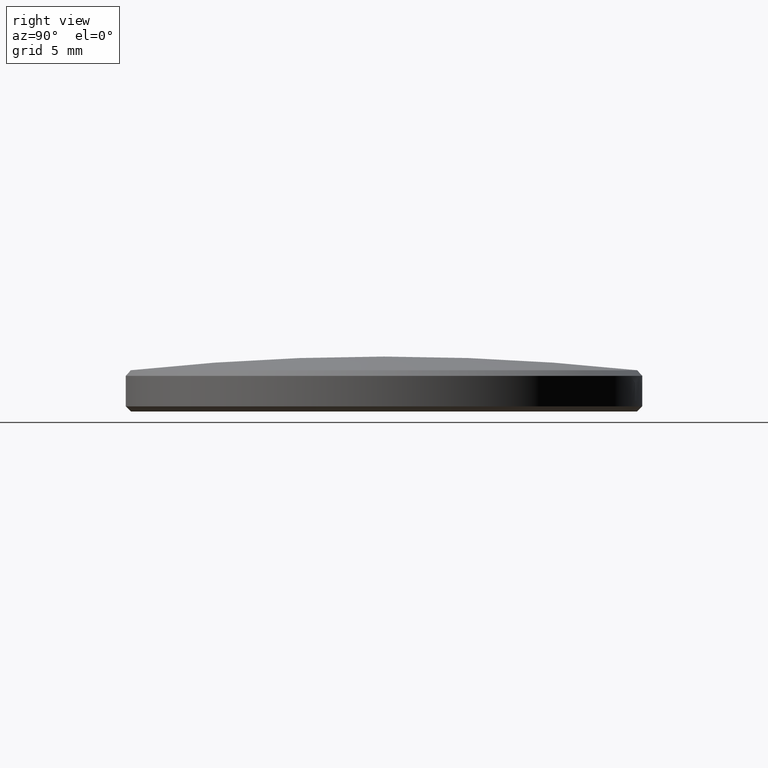
[diagram: clean part render]
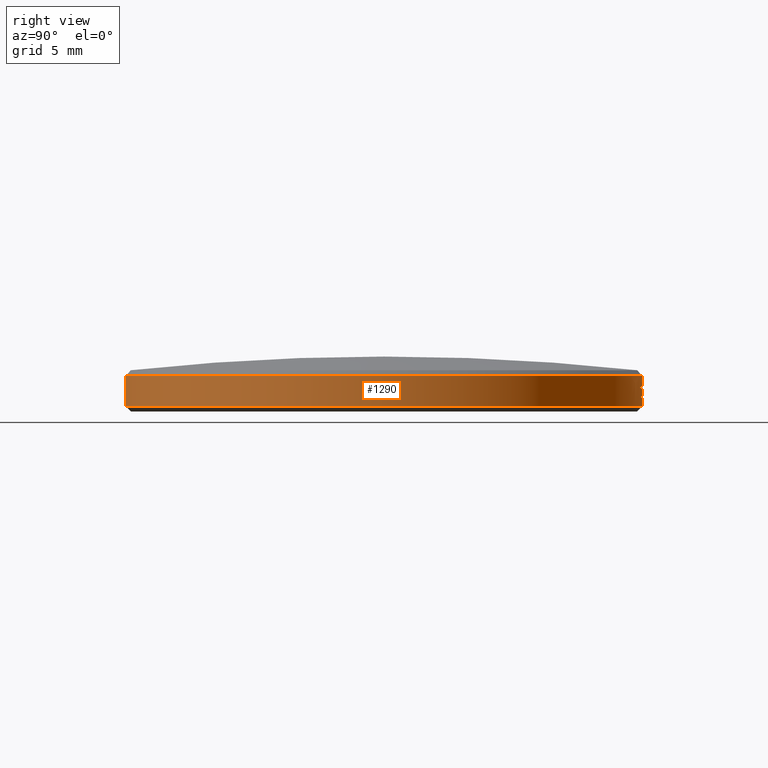
[diagram: same view with one face highlighted and labeled with its STEP entity id]
A machine part, right view. The second image highlights one B-rep face of the part: STEP entity #1290.
In plain terms, the highlighted cylindrical surface (partial cylindrical patch) has radius 12.7 mm, axis along (0, 0, -1).
Its self-contained STEP definition (entity closure, byte-faithful):
#2 = VERTEX_POINT ( 'NONE', #2470 ) ;
#5 = ORIENTED_EDGE ( 'NONE', *, *, #1288, .T. ) ;
#12 = ORIENTED_EDGE ( 'NONE', *, *, #466, .T. ) ;
#22 = CARTESIAN_POINT ( 'NONE',  ( 0.06310918221765582370, 12.69984443364278093, 0.9578117390476045268 ) ) ;
#31 = EDGE_CURVE ( 'NONE', #2350, #2353, #565, .T. ) ;
#41 = CARTESIAN_POINT ( 'NONE',  ( 0.1039479304175971314, 12.69957824866665952, 0.9715471620942197628 ) ) ;
#42 = CARTESIAN_POINT ( 'NONE',  ( 0.9863075602557341837, 12.66164276058135663, 1.053753847064378579 ) ) ;
#44 = AXIS2_PLACEMENT_3D ( 'NONE', #622, #1458, #271 ) ;
#56 = CARTESIAN_POINT ( 'NONE',  ( 0.2578182084802861374, 12.69739299742743199, 0.4172121725201288212 ) ) ;
#62 = DIRECTION ( 'NONE',  ( -0.0000000000000000000, 1.224646799147353454E-16, -1.000000000000000000 ) ) ;
#65 = CARTESIAN_POINT ( 'NONE',  ( 0.1352928001919380951, 12.69927934405004599, 0.3866580847537726684 ) ) ;
#82 = VECTOR ( 'NONE', #160, 1000.000000000000000 ) ;
#98 = CARTESIAN_POINT ( 'NONE',  ( 1.890280369471616817, 12.55901343338894272, 0.7424424913194294096 ) ) ;
#102 = CARTESIAN_POINT ( 'NONE',  ( 2.334205875005757047, 12.48364862262185504, 0.7068640506628636189 ) ) ;
#108 = CARTESIAN_POINT ( 'NONE',  ( 3.077716123806391479, 12.32143106385220577, 0.3999999999999848121 ) ) ;
#111 = VECTOR ( 'NONE', #502, 1000.000000000000000 ) ;
#113 = ORIENTED_EDGE ( 'NONE', *, *, #372, .F. ) ;
#117 = LINE ( 'NONE', #2274, #288 ) ;
#122 = DIRECTION ( 'NONE',  ( 0.0000000000000000000, -1.000000000000000000, -1.195183497228115281E-16 ) ) ;
#124 = DIRECTION ( 'NONE',  ( 0.0000000000000000000, -1.224646799147353700E-16, 1.000000000000000000 ) ) ;
#125 = AXIS2_PLACEMENT_3D ( 'NONE', #1970, #1022, #795 ) ;
#133 = ORIENTED_EDGE ( 'NONE', *, *, #361, .T. ) ;
#134 = VECTOR ( 'NONE', #2159, 1000.000000000000000 ) ;
#138 = CARTESIAN_POINT ( 'NONE',  ( 0.3512937607663082495, 12.69519036954886104, 0.8825326014046565026 ) ) ;
#140 = EDGE_CURVE ( 'NONE', #1902, #872, #1225, .T. ) ;
#152 = CARTESIAN_POINT ( 'NONE',  ( 0.01497619401980290754, 12.70000000000107399, 0.5536123386414030234 ) ) ;
#154 = EDGE_CURVE ( 'NONE', #399, #1506, #254, .T. ) ;
#155 = CARTESIAN_POINT ( 'NONE',  ( 0.8863440183045776521, 12.66905099298163329, 1.243496622866371304 ) ) ;
#160 = DIRECTION ( 'NONE',  ( -0.0000000000000000000, 1.224646799147353454E-16, -1.000000000000000000 ) ) ;
#168 = DIRECTION ( 'NONE',  ( -0.0000000000000000000, 1.224646799147353454E-16, -1.000000000000000000 ) ) ;
#187 = LINE ( 'NONE', #2459, #592 ) ;
#188 = FACE_BOUND ( 'NONE', #1466, .T. ) ;
#189 = CARTESIAN_POINT ( 'NONE',  ( 0.3868556913788471219, 12.69410661189072087, 0.8876053087638934302 ) ) ;
#201 = AXIS2_PLACEMENT_3D ( 'NONE', #590, #168, #964 ) ;
#209 = VERTEX_POINT ( 'NONE', #2223 ) ;
#210 = CARTESIAN_POINT ( 'NONE',  ( 0.3335102337470345346, 12.69564818947010920, 1.238525475396035080 ) ) ;
#214 = CARTESIAN_POINT ( 'NONE',  ( 0.08124733325457739186, 12.69974159198768149, 0.9654208302387725649 ) ) ;
#231 = ORIENTED_EDGE ( 'NONE', *, *, #2445, .T. ) ;
#232 = CARTESIAN_POINT ( 'NONE',  ( 0.4001911994301577402, 12.69369319795852746, 0.6801802201704392203 ) ) ;
#233 = CARTESIAN_POINT ( 'NONE',  ( 0.2275879224296715742, 12.69796212685155012, 0.9400894322221968746 ) ) ;
#234 = CARTESIAN_POINT ( 'NONE',  ( 0.7499267101638491528, 12.67784711593448499, 1.408517300983133769 ) ) ;
#236 = CARTESIAN_POINT ( 'NONE',  ( 0.4001911994301577402, 12.69369319795852746, 0.6801802201704392203 ) ) ;
#238 = B_SPLINE_CURVE_WITH_KNOTS ( 'NONE', 3,
 ( #232, #2164, #1037, #1238 ),
 .UNSPECIFIED., .F., .F.,
 ( 4, 4 ),
 ( 0.0000000000000000000, 1.000000000000000000 ),
 .UNSPECIFIED. ) ;
#244 = CARTESIAN_POINT ( 'NONE',  ( 0.1653007282773312492, 12.69893250538207141, 0.9711166114620122247 ) ) ;
#246 = CARTESIAN_POINT ( 'NONE',  ( 0.3895839738562938415, 12.69402711225090918, 0.6029422081726732996 ) ) ;
#251 = CARTESIAN_POINT ( 'NONE',  ( 0.08492483863449366843, 12.69972148872258089, 0.3910157100277022457 ) ) ;
#252 = CARTESIAN_POINT ( 'NONE',  ( 0.2729893887417808584, 12.69707367360745209, 0.4266902375760575628 ) ) ;
#254 = LINE ( 'NONE', #433, #2277 ) ;
#260 = CARTESIAN_POINT ( 'NONE',  ( 0.2448178652123890742, 12.69764136254018183, 0.9243856886747217061 ) ) ;
#261 = CARTESIAN_POINT ( 'NONE',  ( 0.0000000000000000000, 12.69999999999999751, 0.2499999999999975575 ) ) ;
#266 = CARTESIAN_POINT ( 'NONE',  ( 0.3068341922533429078, 12.69629287542092655, 1.413985558712105961 ) ) ;
#268 = CARTESIAN_POINT ( 'NONE',  ( 0.0000000000000000000, -1.764311156118898572E-16, 1.440669389204528583 ) ) ;
#271 = DIRECTION ( 'NONE',  ( 0.2423398522682198575, 0.9701914223505675450, 1.195183497228115035E-16 ) ) ;
#282 = EDGE_CURVE ( 'NONE', #337, #952, #187, .T. ) ;
#284 = CARTESIAN_POINT ( 'NONE',  ( 0.01844184295076391200, 12.70000000005630447, 0.4126312585269836797 ) ) ;
#288 = VECTOR ( 'NONE', #1132, 1000.000000000000000 ) ;
#295 = VERTEX_POINT ( 'NONE', #1093 ) ;
#303 = ORIENTED_EDGE ( 'NONE', *, *, #154, .T. ) ;
#308 = VERTEX_POINT ( 'NONE', #2072 ) ;
#310 = CARTESIAN_POINT ( 'NONE',  ( 1.278653719037693870, 12.63546772647498884, 0.6534963896780150439 ) ) ;
#321 = CARTESIAN_POINT ( 'NONE',  ( 1.555301434917138235E-15, -12.69999999999999751, -1.555301434917138433E-15 ) ) ;
#323 = DIRECTION ( 'NONE',  ( -0.0000000000000000000, 1.224646799147353454E-16, -1.000000000000000000 ) ) ;
#324 = CIRCLE ( 'NONE', #2137, 12.69999999999999751 ) ;
#325 = ORIENTED_EDGE ( 'NONE', *, *, #699, .F. ) ;
#337 = VERTEX_POINT ( 'NONE', #1102 ) ;
#345 = CARTESIAN_POINT ( 'NONE',  ( 1.278653719037693870, 12.63546772647498884, 0.3999999999999848677 ) ) ;
#347 = CARTESIAN_POINT ( 'NONE',  ( 2.424058770640387994, 12.46699250685706239, 0.7424424913194291875 ) ) ;
#350 = CARTESIAN_POINT ( 'NONE',  ( 0.3868556913788471219, 12.69410661189072087, 0.8876053087638934302 ) ) ;
#355 = DIRECTION ( 'NONE',  ( 0.1006813951998184326, 0.9949187186200780797, 1.195183497228115281E-16 ) ) ;
#361 = EDGE_CURVE ( 'NONE', #500, #1864, #1993, .T. ) ;
#364 = DIRECTION ( 'NONE',  ( 0.0000000000000000000, 0.0000000000000000000, -1.000000000000000000 ) ) ;
#367 = CARTESIAN_POINT ( 'NONE',  ( 0.0000000000000000000, -8.003022618735309142E-17, 0.6534963896780134895 ) ) ;
#368 = ORIENTED_EDGE ( 'NONE', *, *, #1986, .T. ) ;
#372 = EDGE_CURVE ( 'NONE', #2360, #686, #117, .T. ) ;
#382 = CARTESIAN_POINT ( 'NONE',  ( 2.974054955189381566, 12.34686183301301199, 1.427327473958318160 ) ) ;
#386 = VECTOR ( 'NONE', #1197, 1000.000000000000000 ) ;
#390 = CARTESIAN_POINT ( 'NONE',  ( 0.0000000000000000000, 12.69999999999999751, 1.555301434917138433E-15 ) ) ;
#397 = ORIENTED_EDGE ( 'NONE', *, *, #1608, .F. ) ;
#399 = VERTEX_POINT ( 'NONE', #2300 ) ;
#401 = CARTESIAN_POINT ( 'NONE',  ( 1.278653719037693870, 12.63546772647498884, 1.440669389204530138 ) ) ;
#402 = ORIENTED_EDGE ( 'NONE', *, *, #1657, .T. ) ;
#411 = EDGE_CURVE ( 'NONE', #2537, #1558, #1047, .T. ) ;
#420 = CARTESIAN_POINT ( 'NONE',  ( 0.1336251542595709996, 12.69929700094257363, 0.9737023555871059388 ) ) ;
#433 = CARTESIAN_POINT ( 'NONE',  ( 2.557383061100909849, 12.43984693952437937, 0.5200772372158939394 ) ) ;
#434 = CARTESIAN_POINT ( 'NONE',  ( 1.998444601850833724, 12.54225647435846902, 1.084884982638873785 ) ) ;
#438 = CARTESIAN_POINT ( 'NONE',  ( 2.974054955189382010, 12.34686183301301199, 0.5200772372158939394 ) ) ;
#441 = CARTESIAN_POINT ( 'NONE',  ( 0.0000000000000000000, -8.656587970766066855E-17, 0.7068640506628620646 ) ) ;
#442 = EDGE_CURVE ( 'NONE', #552, #209, #581, .T. ) ;
#444 = CARTESIAN_POINT ( 'NONE',  ( 2.422260908450363015, 12.46686215899546823, 0.3999999999999848121 ) ) ;
#458 = DIRECTION ( 'NONE',  ( -0.0000000000000000000, 1.224646799147353454E-16, -1.000000000000000000 ) ) ;
#463 = DIRECTION ( 'NONE',  ( -0.0000000000000000000, 1.224646799147353454E-16, -1.000000000000000000 ) ) ;
#464 = B_SPLINE_CURVE_WITH_KNOTS ( 'NONE', 3,
 ( #663, #491, #2406, #1294 ),
 .UNSPECIFIED., .F., .F.,
 ( 4, 4 ),
 ( 0.0000000000000000000, 1.000000000000000000 ),
 .UNSPECIFIED. ) ;
#466 = EDGE_CURVE ( 'NONE', #1864, #767, #1682, .T. ) ;
#469 = CARTESIAN_POINT ( 'NONE',  ( 0.1363350777167393613, 12.69926819728538270, 0.4933934067234697629 ) ) ;
#473 = CARTESIAN_POINT ( 'NONE',  ( 0.9481902397977944874, 12.66461199625284451, 1.071924261160329017 ) ) ;
#474 = CARTESIAN_POINT ( 'NONE',  ( 0.1352928001919380951, 12.69927934405004599, 0.3866580847537726684 ) ) ;
#483 = ORIENTED_EDGE ( 'NONE', *, *, #2120, .T. ) ;
#488 = LINE ( 'NONE', #382, #2012 ) ;
#491 = CARTESIAN_POINT ( 'NONE',  ( 1.621340980502723017, 12.59667257590404787, 0.9959388809974596413 ) ) ;
#493 = CARTESIAN_POINT ( 'NONE',  ( 0.2715026701357829420, 12.69709814792432567, 0.5997801622162662882 ) ) ;
#496 = CARTESIAN_POINT ( 'NONE',  ( 0.9101465851127908957, 12.66740232306849201, 1.095200073367656568 ) ) ;
#500 = VERTEX_POINT ( 'NONE', #776 ) ;
#502 = DIRECTION ( 'NONE',  ( 0.0000000000000000000, 0.0000000000000000000, 1.000000000000000000 ) ) ;
#504 = CARTESIAN_POINT ( 'NONE',  ( 0.6667890395956690419, 12.68248368328045750, 1.440669389204530138 ) ) ;
#520 = VERTEX_POINT ( 'NONE', #1748 ) ;
#522 = ORIENTED_EDGE ( 'NONE', *, *, #31, .T. ) ;
#523 = CARTESIAN_POINT ( 'NONE',  ( 0.2575012799039565481, 12.69739090813273563, 0.5704019713878063502 ) ) ;
#531 = CARTESIAN_POINT ( 'NONE',  ( 0.1817539795625134347, 12.69871536028208681, 0.4994228850956718979 ) ) ;
#539 = VECTOR ( 'NONE', #548, 1000.000000000000000 ) ;
#540 = EDGE_CURVE ( 'NONE', #1114, #745, #1389, .T. ) ;
#545 = ORIENTED_EDGE ( 'NONE', *, *, #1483, .F. ) ;
#548 = DIRECTION ( 'NONE',  ( 0.0000000000000000000, 0.0000000000000000000, -1.000000000000000000 ) ) ;
#552 = VERTEX_POINT ( 'NONE', #1602 ) ;
#556 = CARTESIAN_POINT ( 'NONE',  ( 0.1363350777167393613, 12.69926819728538270, 0.4933934067234697629 ) ) ;
#560 = CARTESIAN_POINT ( 'NONE',  ( 0.8187019320673004641, 12.67360226588865935, 1.310161436843087834 ) ) ;
#565 = CIRCLE ( 'NONE', #2242, 12.69999999999999751 ) ;
#576 = EDGE_CURVE ( 'NONE', #1334, #308, #1761, .T. ) ;
#578 = ORIENTED_EDGE ( 'NONE', *, *, #2476, .T. ) ;
#581 = CIRCLE ( 'NONE', #1153, 12.70000000000000107 ) ;
#590 = CARTESIAN_POINT ( 'NONE',  ( 0.0000000000000000000, -4.898587196589208464E-17, 0.3999999999999832578 ) ) ;
#592 = VECTOR ( 'NONE', #1494, 1000.000000000000000 ) ;
#597 = LINE ( 'NONE', #737, #539 ) ;
#600 = VERTEX_POINT ( 'NONE', #438 ) ;
#603 = CARTESIAN_POINT ( 'NONE',  ( 0.3068341922533429078, 12.69629287542092655, 1.413985558712105961 ) ) ;
#616 = CARTESIAN_POINT ( 'NONE',  ( 0.3601842434194429399, 12.69491943013432511, 1.063065392079964200 ) ) ;
#622 = CARTESIAN_POINT ( 'NONE',  ( 0.0000000000000000000, -1.747972022318129906E-16, 1.427327473958316606 ) ) ;
#637 = DIRECTION ( 'NONE',  ( 0.1993102527322242190, 0.9799364383243521770, 1.195183497228115035E-16 ) ) ;
#645 = EDGE_CURVE ( 'NONE', #295, #710, #1629, .T. ) ;
#648 = CARTESIAN_POINT ( 'NONE',  ( 3.077716123806392368, 12.32143106385220932, 1.427327473958318160 ) ) ;
#654 = ORIENTED_EDGE ( 'NONE', *, *, #282, .T. ) ;
#663 = CARTESIAN_POINT ( 'NONE',  ( 1.742279033814754907, 12.57992304302094944, 0.7735736268939242821 ) ) ;
#664 = DIRECTION ( 'NONE',  ( 0.1837957381894297360, 0.9829644584741620283, 1.195183497228115035E-16 ) ) ;
#667 = CARTESIAN_POINT ( 'NONE',  ( 1.980454960430679368, 12.54463224449826342, 0.7068640506628636189 ) ) ;
#669 = ORIENTED_EDGE ( 'NONE', *, *, #908, .T. ) ;
#670 = CIRCLE ( 'NONE', #803, 12.69999999999999929 ) ;
#671 = CARTESIAN_POINT ( 'NONE',  ( 0.2256271626161111266, 12.69800580970228410, 0.4017925265974941484 ) ) ;
#675 = CIRCLE ( 'NONE', #878, 12.70000000000000107 ) ;
#677 = CARTESIAN_POINT ( 'NONE',  ( 1.950871536830508957, 12.54930265945133172, 0.6045760337752373870 ) ) ;
#686 = VERTEX_POINT ( 'NONE', #261 ) ;
#692 = CARTESIAN_POINT ( 'NONE',  ( 0.7733523448472124917, 12.67643191717287898, 1.213856830018924082 ) ) ;
#699 = EDGE_CURVE ( 'NONE', #2350, #731, #1263, .T. ) ;
#700 = B_SPLINE_CURVE_WITH_KNOTS ( 'NONE', 3,
 ( #1519, #347, #951, #1337 ),
 .UNSPECIFIED., .F., .F.,
 ( 4, 4 ),
 ( 0.0000000000000000000, 1.000000000000000000 ),
 .UNSPECIFIED. ) ;
#702 = ORIENTED_EDGE ( 'NONE', *, *, #1697, .T. ) ;
#704 = LINE ( 'NONE', #2491, #1916 ) ;
#710 = VERTEX_POINT ( 'NONE', #648 ) ;
#711 = EDGE_CURVE ( 'NONE', #209, #2153, #2410, .T. ) ;
#713 = VERTEX_POINT ( 'NONE', #469 ) ;
#718 = EDGE_CURVE ( 'NONE', #2360, #1902, #1845, .T. ) ;
#722 = CARTESIAN_POINT ( 'NONE',  ( -9.089488522758247023E-10, 12.69999999999999751, 0.5776953777975255555 ) ) ;
#723 = CARTESIAN_POINT ( 'NONE',  ( 0.2801574931158425374, 12.69690953653884158, 0.8723871866861826474 ) ) ;
#725 = FACE_BOUND ( 'NONE', #2095, .T. ) ;
#729 = LINE ( 'NONE', #2167, #386 ) ;
#731 = VERTEX_POINT ( 'NONE', #855 ) ;
#737 = CARTESIAN_POINT ( 'NONE',  ( 1.159131255715042164, 12.64699231960011971, 0.7735736268939241711 ) ) ;
#740 = VERTEX_POINT ( 'NONE', #2011 ) ;
#742 = EDGE_CURVE ( 'NONE', #902, #1988, #1298, .T. ) ;
#745 = VERTEX_POINT ( 'NONE', #2240 ) ;
#752 = CARTESIAN_POINT ( 'NONE',  ( 0.03341181653052784084, 12.69997861916460380, 0.5334488288500165432 ) ) ;
#759 = DIRECTION ( 'NONE',  ( -0.0000000000000000000, 1.224646799147353454E-16, -1.000000000000000000 ) ) ;
#767 = VERTEX_POINT ( 'NONE', #2249 ) ;
#776 = CARTESIAN_POINT ( 'NONE',  ( 0.6667890395956659333, 12.68248368328045572, 0.3999999999999848677 ) ) ;
#786 = CIRCLE ( 'NONE', #823, 12.69999999999999751 ) ;
#795 = DIRECTION ( 'NONE',  ( 0.0000000000000000000, 1.000000000000000000, 1.224646799147353454E-16 ) ) ;
#803 = AXIS2_PLACEMENT_3D ( 'NONE', #1344, #1714, #2116 ) ;
#807 = CARTESIAN_POINT ( 'NONE',  ( 0.03508822404407846429, 12.69997131249745337, 0.9420361929169377424 ) ) ;
#814 = CARTESIAN_POINT ( 'NONE',  ( 0.01610789549318525013, 12.69999999999864926, 0.9242560151147591885 ) ) ;
#823 = AXIS2_PLACEMENT_3D ( 'NONE', #1152, #323, #1702 ) ;
#833 = CARTESIAN_POINT ( 'NONE',  ( 0.1943568596023401152, 12.69852103664611498, 0.9612004236546428659 ) ) ;
#837 = CARTESIAN_POINT ( 'NONE',  ( 0.1620438354821832072, 12.69897158723517805, 0.3879260273607537668 ) ) ;
#840 = B_SPLINE_CURVE_WITH_KNOTS ( 'NONE', 3,
 ( #692, #870, #1487, #496, #473, #2224 ),
 .UNSPECIFIED., .F., .F.,
 ( 4, 2, 4 ),
 ( 0.0000000000000000000, 0.5000000000000000000, 1.000000000000000000 ),
 .UNSPECIFIED. ) ;
#843 = EDGE_CURVE ( 'NONE', #902, #552, #863, .T. ) ;
#850 = DIRECTION ( 'NONE',  ( -0.0000000000000000000, 1.224646799147353454E-16, -1.000000000000000000 ) ) ;
#855 = CARTESIAN_POINT ( 'NONE',  ( 0.0000000000000000000, 12.69999999999999751, 1.413985558712105961 ) ) ;
#863 = B_SPLINE_CURVE_WITH_KNOTS ( 'NONE', 3,
 ( #1402, #434, #98, #1647 ),
 .UNSPECIFIED., .F., .F.,
 ( 4, 4 ),
 ( 0.0000000000000000000, 1.000000000000000000 ),
 .UNSPECIFIED. ) ;
#867 = CARTESIAN_POINT ( 'NONE',  ( 0.04147587739347232544, 12.69995365637636375, 0.4020082157579292215 ) ) ;
#870 = CARTESIAN_POINT ( 'NONE',  ( 0.8039699363360456319, 12.67456402671867366, 1.178579889975393868 ) ) ;
#872 = VERTEX_POINT ( 'NONE', #1793 ) ;
#878 = AXIS2_PLACEMENT_3D ( 'NONE', #441, #850, #664 ) ;
#879 = EDGE_CURVE ( 'NONE', #767, #1163, #840, .T. ) ;
#882 = CARTESIAN_POINT ( 'NONE',  ( 0.1352928001919380951, 12.69927934405004599, 0.3866580847537726684 ) ) ;
#887 = VERTEX_POINT ( 'NONE', #266 ) ;
#892 = AXIS2_PLACEMENT_3D ( 'NONE', #1541, #1904, #1510 ) ;
#894 = DIRECTION ( 'NONE',  ( 0.1090393922241073149, 0.9940374293473043243, 1.237868622129119302E-16 ) ) ;
#898 = ORIENTED_EDGE ( 'NONE', *, *, #742, .F. ) ;
#899 = CARTESIAN_POINT ( 'NONE',  ( 2.363577178406018664, 12.47815674512466089, 0.6045760337752373870 ) ) ;
#902 = VERTEX_POINT ( 'NONE', #2033 ) ;
#908 = EDGE_CURVE ( 'NONE', #2, #520, #464, .T. ) ;
#910 = B_SPLINE_CURVE_WITH_KNOTS ( 'NONE', 3,
 ( #102, #899, #2067, #1099 ),
 .UNSPECIFIED., .F., .F.,
 ( 4, 4 ),
 ( 0.0000000000000000000, 1.000000000000000000 ),
 .UNSPECIFIED. ) ;
#914 = VERTEX_POINT ( 'NONE', #1081 ) ;
#915 = CARTESIAN_POINT ( 'NONE',  ( 0.2934960046421008495, 12.69660821224546687, 0.6935221354166514196 ) ) ;
#922 = ORIENTED_EDGE ( 'NONE', *, *, #2329, .T. ) ;
#924 = CARTESIAN_POINT ( 'NONE',  ( 0.0000000000000000000, 12.69999999999999751, 1.749999999999975353 ) ) ;
#928 = CARTESIAN_POINT ( 'NONE',  ( 0.3157272759872993273, 12.69612468876377775, 0.8774598940454195750 ) ) ;
#933 = VERTEX_POINT ( 'NONE', #1256 ) ;
#951 = CARTESIAN_POINT ( 'NONE',  ( 2.316595698633677980, 12.48740755555854598, 1.084884982638873341 ) ) ;
#952 = VERTEX_POINT ( 'NONE', #958 ) ;
#953 = CARTESIAN_POINT ( 'NONE',  ( 0.08129772384729379298, 12.69976235828132616, 0.5012233042504621316 ) ) ;
#958 = CARTESIAN_POINT ( 'NONE',  ( 1.384800281246159948, 12.62427535271076628, 0.6534963896780150439 ) ) ;
#964 = DIRECTION ( 'NONE',  ( 0.2423398522682198575, 0.9701914223505675450, 1.195183497228115035E-16 ) ) ;
#970 = EDGE_CURVE ( 'NONE', #2099, #914, #1447, .T. ) ;
#971 = VERTEX_POINT ( 'NONE', #345 ) ;
#980 = VECTOR ( 'NONE', #1257, 1000.000000000000000 ) ;
#996 = ORIENTED_EDGE ( 'NONE', *, *, #576, .T. ) ;
#1006 = CARTESIAN_POINT ( 'NONE',  ( 0.7358945226224516967, 12.67866157177382291, 1.440669389204530138 ) ) ;
#1022 = DIRECTION ( 'NONE',  ( -0.0000000000000000000, 1.224646799147353454E-16, -1.000000000000000000 ) ) ;
#1037 = CARTESIAN_POINT ( 'NONE',  ( 0.3290649433680071789, 12.69578599727034174, 0.6890748303345807235 ) ) ;
#1039 = CARTESIAN_POINT ( 'NONE',  ( 0.2630363814684353319, 12.69727812175302617, 0.9025877292579305156 ) ) ;
#1047 = B_SPLINE_CURVE_WITH_KNOTS ( 'NONE', 3,
 ( #723, #928, #138, #350 ),
 .UNSPECIFIED., .F., .F.,
 ( 4, 4 ),
 ( 0.0000000000000000000, 1.000000000000000000 ),
 .UNSPECIFIED. ) ;
#1052 = EDGE_CURVE ( 'NONE', #399, #600, #1383, .T. ) ;
#1054 = DIRECTION ( 'NONE',  ( -0.0000000000000000000, 1.224646799147353454E-16, -1.000000000000000000 ) ) ;
#1056 = CARTESIAN_POINT ( 'NONE',  ( 0.1466853431629177862, 12.69915797267155710, 0.3869947937050474129 ) ) ;
#1065 = DIRECTION ( 'NONE',  ( 0.1085661902581407379, 0.9940892225212146771, 1.195183497228115528E-16 ) ) ;
#1071 = CARTESIAN_POINT ( 'NONE',  ( 0.3732237400949082740, 12.69451525905633460, 0.5546887353606061444 ) ) ;
#1073 = ORIENTED_EDGE ( 'NONE', *, *, #2338, .T. ) ;
#1077 = CARTESIAN_POINT ( 'NONE',  ( 0.2089913795478758329, 12.69828635497104941, 0.9534328739551836129 ) ) ;
#1081 = CARTESIAN_POINT ( 'NONE',  ( 1.278653719037693870, 12.63546772647498884, 0.6534963896780150439 ) ) ;
#1084 = CARTESIAN_POINT ( 'NONE',  ( 0.2897600287006599218, 12.69669457342114072, 0.6654952345451168316 ) ) ;
#1093 = CARTESIAN_POINT ( 'NONE',  ( 2.974054955189381566, 12.34686183301301199, 1.427327473958318160 ) ) ;
#1099 = CARTESIAN_POINT ( 'NONE',  ( 2.422260908450363015, 12.46686215899546823, 0.3999999999999848121 ) ) ;
#1102 = CARTESIAN_POINT ( 'NONE',  ( 1.384800281246162834, 12.62427535271076451, 0.3999999999999848677 ) ) ;
#1113 = B_SPLINE_CURVE_WITH_KNOTS ( 'NONE', 3,
 ( #915, #1084, #1673, #493, #2086, #523, #1515, #2289, #531, #1897, #556 ),
 .UNSPECIFIED., .F., .F.,
 ( 4, 1, 2, 2, 2, 4 ),
 ( 0.0000000000000000000, 0.2499999999999992228, 0.3749999999999995004, 0.4999999999999997780, 0.7499999999999998890, 1.000000000000000000 ),
 .UNSPECIFIED. ) ;
#1114 = VERTEX_POINT ( 'NONE', #2362 ) ;
#1116 = EDGE_CURVE ( 'NONE', #731, #887, #324, .T. ) ;
#1125 = CARTESIAN_POINT ( 'NONE',  ( 0.0000000000000000000, -3.061616997868334947E-17, 0.2499999999999960032 ) ) ;
#1130 = VECTOR ( 'NONE', #1137, 1000.000000000000000 ) ;
#1131 = CIRCLE ( 'NONE', #201, 12.70000000000000107 ) ;
#1132 = DIRECTION ( 'NONE',  ( -0.0000000000000000000, 1.224646799147353454E-16, -1.000000000000000000 ) ) ;
#1137 = DIRECTION ( 'NONE',  ( -0.0000000000000000000, 1.224646799147353454E-16, -1.000000000000000000 ) ) ;
#1152 = CARTESIAN_POINT ( 'NONE',  ( 0.0000000000000000000, -8.003022618735309142E-17, 0.6534963896780134895 ) ) ;
#1153 = AXIS2_PLACEMENT_3D ( 'NONE', #1762, #2112, #1165 ) ;
#1163 = VERTEX_POINT ( 'NONE', #42 ) ;
#1165 = DIRECTION ( 'NONE',  ( 0.1489492808733328677, 0.9888448370332511006, 1.195183497228115035E-16 ) ) ;
#1170 = CARTESIAN_POINT ( 'NONE',  ( 0.2801574931158425374, 12.69690953653884158, 0.8723871866861826474 ) ) ;
#1184 = CARTESIAN_POINT ( 'NONE',  ( 0.9863075602557344057, 12.66164276058135663, 1.173831084280287707 ) ) ;
#1197 = DIRECTION ( 'NONE',  ( 0.0000000000000000000, 0.0000000000000000000, 1.000000000000000000 ) ) ;
#1218 = CARTESIAN_POINT ( 'NONE',  ( 1.159131255715038611, 12.64699231960012149, 0.6534963896780150439 ) ) ;
#1219 = CARTESIAN_POINT ( 'NONE',  ( 0.7630665808679564233, 12.67706749100951136, 1.384584353647243971 ) ) ;
#1225 = B_SPLINE_CURVE_WITH_KNOTS ( 'NONE', 3,
 ( #65, #1056, #837, #2026, #1264, #2211, #1630, #671, #56, #252, #1235, #1432, #2200, #2032, #2426, #1071, #1461, #246, #2191, #236 ),
 .UNSPECIFIED., .F., .F.,
 ( 4, 1, 2, 2, 2, 2, 2, 1, 2, 2, 4 ),
 ( 0.0000000000000000000, 0.06250000000000015266, 0.09375000000000026368, 0.1250000000000003608, 0.2500000000000006106, 0.3750000000000006661, 0.5000000000000007772, 0.6250000000000008882, 0.6875000000000007772, 0.7500000000000006661, 1.000000000000000000 ),
 .UNSPECIFIED. ) ;
#1235 = CARTESIAN_POINT ( 'NONE',  ( 0.3014832828076833282, 12.69642906133722704, 0.4491828518771382450 ) ) ;
#1238 = CARTESIAN_POINT ( 'NONE',  ( 0.2934960046421008495, 12.69660821224546687, 0.6935221354166514196 ) ) ;
#1252 = DIRECTION ( 'NONE',  ( 0.1739280990653989667, 0.9847583542958631142, 1.195183497228115035E-16 ) ) ;
#1256 = CARTESIAN_POINT ( 'NONE',  ( 0.2934960046421008495, 12.69660821224546687, 0.6935221354166514196 ) ) ;
#1257 = DIRECTION ( 'NONE',  ( 0.0000000000000000000, 0.0000000000000000000, -1.000000000000000000 ) ) ;
#1259 = CARTESIAN_POINT ( 'NONE',  ( 1.980454960430679368, 12.54463224449826342, 0.7068640506628636189 ) ) ;
#1263 = LINE ( 'NONE', #1849, #2339 ) ;
#1264 = CARTESIAN_POINT ( 'NONE',  ( 0.1827390588351049672, 12.69868584416825641, 0.3906855657685140981 ) ) ;
#1272 = CARTESIAN_POINT ( 'NONE',  ( 0.1213010066313962299, 12.69942840675503959, 0.3870639924514955310 ) ) ;
#1281 = CARTESIAN_POINT ( 'NONE',  ( 1.891655867091326826, 12.55832943032228677, 0.3999999999999848121 ) ) ;
#1288 = EDGE_CURVE ( 'NONE', #872, #933, #238, .T. ) ;
#1290 = ADVANCED_FACE ( 'NONE', ( #725, #1829, #188, #1737, #2068 ), #1707, .T. ) ;
#1294 = CARTESIAN_POINT ( 'NONE',  ( 1.378790616278386949, 12.62493312601942286, 1.440669389204530138 ) ) ;
#1298 = CIRCLE ( 'NONE', #2408, 12.70000000000000107 ) ;
#1300 = AXIS2_PLACEMENT_3D ( 'NONE', #2161, #1755, #2327 ) ;
#1302 = ORIENTED_EDGE ( 'NONE', *, *, #1769, .T. ) ;
#1311 = ORIENTED_EDGE ( 'NONE', *, *, #2035, .T. ) ;
#1313 = ORIENTED_EDGE ( 'NONE', *, *, #2207, .T. ) ;
#1329 = DIRECTION ( 'NONE',  ( -0.0000000000000000000, 1.224646799147352961E-16, -1.000000000000000000 ) ) ;
#1334 = VERTEX_POINT ( 'NONE', #444 ) ;
#1336 = VERTEX_POINT ( 'NONE', #2019 ) ;
#1337 = CARTESIAN_POINT ( 'NONE',  ( 2.208886858130567177, 12.50643109955746191, 1.427327473958318160 ) ) ;
#1339 = CARTESIAN_POINT ( 'NONE',  ( 0.1047247224561835555, 12.69960755544162723, 0.4944397479296146480 ) ) ;
#1343 = ORIENTED_EDGE ( 'NONE', *, *, #843, .T. ) ;
#1344 = CARTESIAN_POINT ( 'NONE',  ( 0.0000000000000000000, -1.764311156118898572E-16, 1.440669389204528583 ) ) ;
#1346 = AXIS2_PLACEMENT_3D ( 'NONE', #1677, #2259, #894 ) ;
#1351 = DIRECTION ( 'NONE',  ( 0.0000000000000000000, 1.000000000000000000, 1.237868622129119548E-16 ) ) ;
#1355 = ORIENTED_EDGE ( 'NONE', *, *, #1513, .F. ) ;
#1363 = ORIENTED_EDGE ( 'NONE', *, *, #1554, .T. ) ;
#1367 = CARTESIAN_POINT ( 'NONE',  ( 0.6667890395956660443, 12.68248368328045927, 1.440669389204530138 ) ) ;
#1374 = AXIS2_PLACEMENT_3D ( 'NONE', #1780, #1992, #637 ) ;
#1381 = ORIENTED_EDGE ( 'NONE', *, *, #1052, .F. ) ;
#1383 = CIRCLE ( 'NONE', #1300, 12.69999999999999929 ) ;
#1386 = CARTESIAN_POINT ( 'NONE',  ( 0.9552749593338392131, 12.66406011585526592, 1.192578265090589840 ) ) ;
#1388 = VERTEX_POINT ( 'NONE', #2412 ) ;
#1389 = B_SPLINE_CURVE_WITH_KNOTS ( 'NONE', 3,
 ( #1184, #1386, #2144, #155, #1546, #560, #2156, #1219, #234, #1006 ),
 .UNSPECIFIED., .F., .F.,
 ( 4, 2, 2, 2, 4 ),
 ( 0.0000000000000000000, 0.2500000000000000000, 0.5000000000000000000, 0.7500000000000000000, 1.000000000000000000 ),
 .UNSPECIFIED. ) ;
#1401 = CARTESIAN_POINT ( 'NONE',  ( 0.08949325887145061220, 12.69968559347742065, 0.9679248953202619354 ) ) ;
#1402 = CARTESIAN_POINT ( 'NONE',  ( 2.106374175317978548, 12.52410427270363513, 1.427327473958318382 ) ) ;
#1427 = CARTESIAN_POINT ( 'NONE',  ( 0.1170526048810734410, 12.69947138141946752, 0.9730705080971727705 ) ) ;
#1432 = CARTESIAN_POINT ( 'NONE',  ( 0.3157698463110790166, 12.69607893190671888, 0.4633465902507100664 ) ) ;
#1437 = CARTESIAN_POINT ( 'NONE',  ( 0.0000000000000000000, -1.747972022318129906E-16, 1.427327473958316606 ) ) ;
#1439 = DIRECTION ( 'NONE',  ( 0.0000000000000000000, 0.0000000000000000000, -1.000000000000000000 ) ) ;
#1447 = CIRCLE ( 'NONE', #2017, 12.69999999999999751 ) ;
#1448 = CARTESIAN_POINT ( 'NONE',  ( 0.2713214507424343003, 12.69710450394199519, 0.8893215787158424979 ) ) ;
#1450 = CIRCLE ( 'NONE', #2303, 12.69999999999999751 ) ;
#1457 = CARTESIAN_POINT ( 'NONE',  ( 0.1336251542595709996, 12.69929700094257363, 0.9737023555871059388 ) ) ;
#1458 = DIRECTION ( 'NONE',  ( -0.0000000000000000000, 1.224646799147353454E-16, -1.000000000000000000 ) ) ;
#1461 = CARTESIAN_POINT ( 'NONE',  ( 0.3770896055554183168, 12.69440072155180133, 0.5650881266500843436 ) ) ;
#1466 = EDGE_LOOP ( 'NONE', ( #368, #402, #654, #1811, #1311, #669, #1873, #231, #545, #1363, #2039 ) ) ;
#1473 = CARTESIAN_POINT ( 'NONE',  ( 1.067613639957903620E-09, 12.69999999999999751, 0.9009984037993408190 ) ) ;
#1474 = CARTESIAN_POINT ( 'NONE',  ( 1.921271592128666272, 12.55386842614685960, 0.5022880168876111551 ) ) ;
#1483 = EDGE_CURVE ( 'NONE', #1388, #1747, #2281, .T. ) ;
#1487 = CARTESIAN_POINT ( 'NONE',  ( 0.8342100416213217295, 12.67262964137008296, 1.151962494005067672 ) ) ;
#1494 = DIRECTION ( 'NONE',  ( 0.0000000000000000000, 0.0000000000000000000, 1.000000000000000000 ) ) ;
#1498 = B_SPLINE_CURVE_WITH_KNOTS ( 'NONE', 3,
 ( #1991, #814, #807, #22, #1589, #214, #1401, #41, #1427, #420 ),
 .UNSPECIFIED., .F., .F.,
 ( 4, 2, 2, 2, 4 ),
 ( 0.5090332085481308333, 0.7545166042740655277, 0.8158874532055491180, 0.8772583021370325973, 1.000000000000000000 ),
 .UNSPECIFIED. ) ;
#1506 = VERTEX_POINT ( 'NONE', #2089 ) ;
#1508 = EDGE_CURVE ( 'NONE', #1163, #1114, #704, .T. ) ;
#1510 = DIRECTION ( 'NONE',  ( 0.06089388542104036406, 0.9981442454466834535, 1.237868622129119548E-16 ) ) ;
#1513 = EDGE_CURVE ( 'NONE', #1594, #745, #670, .T. ) ;
#1515 = CARTESIAN_POINT ( 'NONE',  ( 0.2378824776825549936, 12.69777866633168451, 0.5410174431252050553 ) ) ;
#1519 = CARTESIAN_POINT ( 'NONE',  ( 2.531240209699246790, 12.44519276671926988, 0.3999999999999848677 ) ) ;
#1520 = EDGE_LOOP ( 'NONE', ( #1355, #702, #133, #12, #2454, #1869, #1569 ) ) ;
#1525 = EDGE_CURVE ( 'NONE', #308, #1988, #700, .T. ) ;
#1530 = VERTEX_POINT ( 'NONE', #1908 ) ;
#1531 = DIRECTION ( 'NONE',  ( -0.0000000000000000000, 1.224646799147353454E-16, -1.000000000000000000 ) ) ;
#1541 = CARTESIAN_POINT ( 'NONE',  ( 0.0000000000000000000, -4.898587196589208464E-17, 0.3999999999999832578 ) ) ;
#1546 = CARTESIAN_POINT ( 'NONE',  ( 0.8618390210396452700, 12.67074191787214410, 1.265499217685337019 ) ) ;
#1554 = EDGE_CURVE ( 'NONE', #1388, #2099, #597, .T. ) ;
#1558 = VERTEX_POINT ( 'NONE', #2297 ) ;
#1562 = DIRECTION ( 'NONE',  ( 0.0000000000000000000, 0.0000000000000000000, -1.000000000000000000 ) ) ;
#1564 = ORIENTED_EDGE ( 'NONE', *, *, #2247, .T. ) ;
#1569 = ORIENTED_EDGE ( 'NONE', *, *, #540, .T. ) ;
#1571 = EDGE_CURVE ( 'NONE', #2353, #1530, #1595, .T. ) ;
#1589 = CARTESIAN_POINT ( 'NONE',  ( 0.06897849363865372896, 12.69981415611417397, 0.9605956009762913750 ) ) ;
#1594 = VERTEX_POINT ( 'NONE', #1367 ) ;
#1595 = LINE ( 'NONE', #321, #1130 ) ;
#1602 = CARTESIAN_POINT ( 'NONE',  ( 1.781917622513652155, 12.57436955026276060, 0.3999999999999848121 ) ) ;
#1608 = EDGE_CURVE ( 'NONE', #2286, #1336, #2494, .T. ) ;
#1622 = EDGE_CURVE ( 'NONE', #1558, #887, #2063, .T. ) ;
#1629 = CIRCLE ( 'NONE', #44, 12.70000000000000107 ) ;
#1630 = CARTESIAN_POINT ( 'NONE',  ( 0.2087953750479016324, 12.69829772711648452, 0.3962145429201025526 ) ) ;
#1647 = CARTESIAN_POINT ( 'NONE',  ( 1.781917622513652155, 12.57436955026276060, 0.3999999999999848121 ) ) ;
#1657 = EDGE_CURVE ( 'NONE', #971, #337, #2040, .T. ) ;
#1659 = CARTESIAN_POINT ( 'NONE',  ( 0.2514353633960462742, 12.69751137892047055, 0.9169845928397044599 ) ) ;
#1661 = CARTESIAN_POINT ( 'NONE',  ( 0.7733523448472126027, 12.67643191717287898, 0.3999999999999848677 ) ) ;
#1673 = CARTESIAN_POINT ( 'NONE',  ( 0.2821420095484543089, 12.69686851714848963, 0.6287022061766017744 ) ) ;
#1677 = CARTESIAN_POINT ( 'NONE',  ( 0.0000000000000000000, -4.898587196589208464E-17, 0.3999999999999832578 ) ) ;
#1681 = ORIENTED_EDGE ( 'NONE', *, *, #2062, .T. ) ;
#1682 = LINE ( 'NONE', #2325, #2121 ) ;
#1697 = EDGE_CURVE ( 'NONE', #1594, #500, #1973, .T. ) ;
#1702 = DIRECTION ( 'NONE',  ( 0.1371873254972248157, 0.9905451214977127883, 1.195183497228115281E-16 ) ) ;
#1707 = CYLINDRICAL_SURFACE ( 'NONE', #125, 12.69999999999999751 ) ;
#1710 = LINE ( 'NONE', #310, #980 ) ;
#1714 = DIRECTION ( 'NONE',  ( -0.0000000000000000000, 1.224646799147353454E-16, -1.000000000000000000 ) ) ;
#1720 = DIRECTION ( 'NONE',  ( 0.0000000000000000000, 0.0000000000000000000, 1.000000000000000000 ) ) ;
#1721 = VERTEX_POINT ( 'NONE', #401 ) ;
#1722 = CARTESIAN_POINT ( 'NONE',  ( 1.555301434917138235E-15, -12.69999999999999751, 1.749999999999972244 ) ) ;
#1731 = DIRECTION ( 'NONE',  ( 0.0000000000000000000, 0.0000000000000000000, 1.000000000000000000 ) ) ;
#1737 = FACE_BOUND ( 'NONE', #1520, .T. ) ;
#1747 = VERTEX_POINT ( 'NONE', #2364 ) ;
#1748 = CARTESIAN_POINT ( 'NONE',  ( 1.378790616278386949, 12.62493312601942286, 1.440669389204530138 ) ) ;
#1755 = DIRECTION ( 'NONE',  ( -0.0000000000000000000, 1.224646799147353454E-16, -1.000000000000000000 ) ) ;
#1761 = CIRCLE ( 'NONE', #1374, 12.70000000000000107 ) ;
#1762 = CARTESIAN_POINT ( 'NONE',  ( 0.0000000000000000000, -4.898587196589208464E-17, 0.3999999999999832578 ) ) ;
#1765 = EDGE_LOOP ( 'NONE', ( #522, #1976, #922, #113, #2093, #2495, #5, #2145, #1073, #397, #1681, #483, #1843, #2232, #1846, #325 ) ) ;
#1769 = EDGE_CURVE ( 'NONE', #295, #600, #488, .T. ) ;
#1775 = ORIENTED_EDGE ( 'NONE', *, *, #1895, .T. ) ;
#1780 = CARTESIAN_POINT ( 'NONE',  ( 0.0000000000000000000, -4.898587196589208464E-17, 0.3999999999999832578 ) ) ;
#1793 = CARTESIAN_POINT ( 'NONE',  ( 0.4001911994301577402, 12.69369319795852746, 0.6801802201704392203 ) ) ;
#1811 = ORIENTED_EDGE ( 'NONE', *, *, #2374, .T. ) ;
#1829 = FACE_BOUND ( 'NONE', #2020, .T. ) ;
#1843 = ORIENTED_EDGE ( 'NONE', *, *, #411, .T. ) ;
#1845 = B_SPLINE_CURVE_WITH_KNOTS ( 'NONE', 3,
 ( #2030, #284, #867, #2218, #251, #2037, #1272, #882 ),
 .UNSPECIFIED., .F., .F.,
 ( 4, 2, 2, 4 ),
 ( 0.7222899417467876226, 0.8611449708733938113, 0.9305724854366969057, 1.000000000000000000 ),
 .UNSPECIFIED. ) ;
#1846 = ORIENTED_EDGE ( 'NONE', *, *, #1116, .F. ) ;
#1849 = CARTESIAN_POINT ( 'NONE',  ( 0.0000000000000000000, 12.69999999999999751, 1.555301434917138433E-15 ) ) ;
#1864 = VERTEX_POINT ( 'NONE', #1661 ) ;
#1869 = ORIENTED_EDGE ( 'NONE', *, *, #1508, .T. ) ;
#1873 = ORIENTED_EDGE ( 'NONE', *, *, #1876, .F. ) ;
#1876 = EDGE_CURVE ( 'NONE', #1721, #520, #1977, .T. ) ;
#1883 = CARTESIAN_POINT ( 'NONE',  ( 0.0000000000000000000, -2.143131898507836496E-16, 1.749999999999973799 ) ) ;
#1895 = EDGE_CURVE ( 'NONE', #2153, #2341, #675, .T. ) ;
#1896 = LINE ( 'NONE', #108, #111 ) ;
#1897 = CARTESIAN_POINT ( 'NONE',  ( 0.1628574124479790775, 12.69898346240848674, 0.4943444171902178774 ) ) ;
#1902 = VERTEX_POINT ( 'NONE', #474 ) ;
#1904 = DIRECTION ( 'NONE',  ( -0.0000000000000000000, 1.224646799147353454E-16, -1.000000000000000000 ) ) ;
#1908 = CARTESIAN_POINT ( 'NONE',  ( 1.555301434917138235E-15, -12.69999999999999751, 0.2499999999999944211 ) ) ;
#1916 = VECTOR ( 'NONE', #1720, 1000.000000000000000 ) ;
#1918 = DIRECTION ( 'NONE',  ( 0.1006813951998184326, 0.9949187186200780797, 1.195183497228115281E-16 ) ) ;
#1970 = CARTESIAN_POINT ( 'NONE',  ( 0.0000000000000000000, 0.0000000000000000000, 0.0000000000000000000 ) ) ;
#1973 = LINE ( 'NONE', #504, #134 ) ;
#1976 = ORIENTED_EDGE ( 'NONE', *, *, #1571, .T. ) ;
#1977 = CIRCLE ( 'NONE', #2258, 12.69999999999999574 ) ;
#1986 = EDGE_CURVE ( 'NONE', #914, #971, #1710, .T. ) ;
#1988 = VERTEX_POINT ( 'NONE', #2096 ) ;
#1991 = CARTESIAN_POINT ( 'NONE',  ( 1.067613639957903620E-09, 12.69999999999999751, 0.9009984037993408190 ) ) ;
#1992 = DIRECTION ( 'NONE',  ( -0.0000000000000000000, 1.224646799147353454E-16, -1.000000000000000000 ) ) ;
#1993 = CIRCLE ( 'NONE', #892, 12.69999999999999751 ) ;
#2010 = CARTESIAN_POINT ( 'NONE',  ( 0.2335134440351516183, 12.69785428449520737, 0.9351695579483040310 ) ) ;
#2011 = CARTESIAN_POINT ( 'NONE',  ( 3.077716123806391479, 12.32143106385220577, 0.3999999999999848121 ) ) ;
#2012 = VECTOR ( 'NONE', #1562, 1000.000000000000000 ) ;
#2017 = AXIS2_PLACEMENT_3D ( 'NONE', #367, #1531, #1918 ) ;
#2019 = CARTESIAN_POINT ( 'NONE',  ( -9.089488522758247023E-10, 12.69999999999999751, 0.5776953777975255555 ) ) ;
#2020 = EDGE_LOOP ( 'NONE', ( #1313, #996, #2136, #898, #1343, #2228, #2485, #1775 ) ) ;
#2026 = CARTESIAN_POINT ( 'NONE',  ( 0.1748070009112977496, 12.69879751176998361, 0.3894965163596512125 ) ) ;
#2030 = CARTESIAN_POINT ( 'NONE',  ( -3.877465504429576069E-08, 12.69999999999999751, 0.4246970797660196695 ) ) ;
#2032 = CARTESIAN_POINT ( 'NONE',  ( 0.3537632451022715285, 12.69507687535143248, 0.5127988401434736554 ) ) ;
#2033 = CARTESIAN_POINT ( 'NONE',  ( 2.106374175317978548, 12.52410427270363513, 1.427327473958318382 ) ) ;
#2035 = EDGE_CURVE ( 'NONE', #2252, #2, #729, .T. ) ;
#2037 = CARTESIAN_POINT ( 'NONE',  ( 0.1084289944786454712, 12.69954256154509942, 0.3880166990458261966 ) ) ;
#2039 = ORIENTED_EDGE ( 'NONE', *, *, #970, .T. ) ;
#2040 = CIRCLE ( 'NONE', #1346, 12.69999999999999929 ) ;
#2062 = EDGE_CURVE ( 'NONE', #2286, #2322, #1498, .T. ) ;
#2063 = B_SPLINE_CURVE_WITH_KNOTS ( 'NONE', 3,
 ( #189, #616, #210, #603 ),
 .UNSPECIFIED., .F., .F.,
 ( 4, 4 ),
 ( 0.0000000000000000000, 1.000000000000000000 ),
 .UNSPECIFIED. ) ;
#2067 = CARTESIAN_POINT ( 'NONE',  ( 2.392929099939062887, 12.47256121078772750, 0.5022880168876110440 ) ) ;
#2068 = FACE_OUTER_BOUND ( 'NONE', #1765, .T. ) ;
#2071 = LINE ( 'NONE', #2135, #2343 ) ;
#2072 = CARTESIAN_POINT ( 'NONE',  ( 2.531240209699246790, 12.44519276671926988, 0.3999999999999848677 ) ) ;
#2076 = CARTESIAN_POINT ( 'NONE',  ( 0.1336251542595709996, 12.69929700094257363, 0.9737023555871059388 ) ) ;
#2082 = B_SPLINE_CURVE_WITH_KNOTS ( 'NONE', 3,
 ( #2448, #1339, #953, #752, #152, #722 ),
 .UNSPECIFIED., .F., .F.,
 ( 4, 2, 4 ),
 ( 0.0000000000000000000, 0.2459716821756227911, 0.4919433643512455823 ),
 .UNSPECIFIED. ) ;
#2086 = CARTESIAN_POINT ( 'NONE',  ( 0.2637383365654896172, 12.69726179803109822, 0.5822479072223047947 ) ) ;
#2089 = CARTESIAN_POINT ( 'NONE',  ( 2.557383061100909849, 12.43984693952437937, 0.3999999999999848121 ) ) ;
#2093 = ORIENTED_EDGE ( 'NONE', *, *, #718, .T. ) ;
#2095 = EDGE_LOOP ( 'NONE', ( #303, #578, #1564, #2162, #1302, #1381 ) ) ;
#2096 = CARTESIAN_POINT ( 'NONE',  ( 2.208886858130567177, 12.50643109955746191, 1.427327473958318160 ) ) ;
#2099 = VERTEX_POINT ( 'NONE', #1218 ) ;
#2112 = DIRECTION ( 'NONE',  ( -0.0000000000000000000, 1.224646799147353454E-16, -1.000000000000000000 ) ) ;
#2116 = DIRECTION ( 'NONE',  ( 0.05794445060019304955, 0.9983198088010885041, 1.195183497228115281E-16 ) ) ;
#2120 = EDGE_CURVE ( 'NONE', #2322, #2537, #2275, .T. ) ;
#2121 = VECTOR ( 'NONE', #1731, 1000.000000000000000 ) ;
#2135 = CARTESIAN_POINT ( 'NONE',  ( 1.278653719037693870, 12.63546772647498884, 1.440669389204530138 ) ) ;
#2136 = ORIENTED_EDGE ( 'NONE', *, *, #1525, .T. ) ;
#2137 = AXIS2_PLACEMENT_3D ( 'NONE', #2382, #458, #2376 ) ;
#2144 = CARTESIAN_POINT ( 'NONE',  ( 0.9290728334776484632, 12.66598920146575402, 1.210260808969867208 ) ) ;
#2145 = ORIENTED_EDGE ( 'NONE', *, *, #2293, .T. ) ;
#2153 = VERTEX_POINT ( 'NONE', #667 ) ;
#2156 = CARTESIAN_POINT ( 'NONE',  ( 0.7982577259442239503, 12.67490021189192362, 1.334474986053034939 ) ) ;
#2159 = DIRECTION ( 'NONE',  ( 0.0000000000000000000, 0.0000000000000000000, -1.000000000000000000 ) ) ;
#2161 = CARTESIAN_POINT ( 'NONE',  ( 0.0000000000000000000, -6.369109238658415476E-17, 0.5200772372158923851 ) ) ;
#2162 = ORIENTED_EDGE ( 'NONE', *, *, #645, .F. ) ;
#2164 = CARTESIAN_POINT ( 'NONE',  ( 0.3646304269769144457, 12.69481431440263819, 0.6846275252525099164 ) ) ;
#2167 = CARTESIAN_POINT ( 'NONE',  ( 1.742279033814754907, 12.57992304302094944, 0.6534963896780150439 ) ) ;
#2191 = CARTESIAN_POINT ( 'NONE',  ( 0.3964513943604114909, 12.69381110194857776, 0.6387826339112857577 ) ) ;
#2200 = CARTESIAN_POINT ( 'NONE',  ( 0.3386394063373185936, 12.69548952161831679, 0.4906137946733972743 ) ) ;
#2207 = EDGE_CURVE ( 'NONE', #2341, #1334, #910, .T. ) ;
#2211 = CARTESIAN_POINT ( 'NONE',  ( 0.1850587152618048403, 12.69865251962197128, 0.3910559896346917363 ) ) ;
#2218 = CARTESIAN_POINT ( 'NONE',  ( 0.07643290614374845249, 12.69977534413450115, 0.3924785705102047384 ) ) ;
#2223 = CARTESIAN_POINT ( 'NONE',  ( 1.891655867091326826, 12.55832943032228677, 0.3999999999999848121 ) ) ;
#2224 = CARTESIAN_POINT ( 'NONE',  ( 0.9863075602557341837, 12.66164276058135663, 1.053753847064378579 ) ) ;
#2228 = ORIENTED_EDGE ( 'NONE', *, *, #442, .T. ) ;
#2229 = CARTESIAN_POINT ( 'NONE',  ( 0.1520126456183067409, 12.69910352319580760, 0.9729100955491106761 ) ) ;
#2232 = ORIENTED_EDGE ( 'NONE', *, *, #1622, .T. ) ;
#2238 = AXIS2_PLACEMENT_3D ( 'NONE', #2321, #759, #355 ) ;
#2239 = CARTESIAN_POINT ( 'NONE',  ( 1.742279033814754907, 12.57992304302094944, 0.6534963896780150439 ) ) ;
#2240 = CARTESIAN_POINT ( 'NONE',  ( 0.7358945226224516967, 12.67866157177382291, 1.440669389204530138 ) ) ;
#2242 = AXIS2_PLACEMENT_3D ( 'NONE', #1883, #1329, #122 ) ;
#2247 = EDGE_CURVE ( 'NONE', #740, #710, #1896, .T. ) ;
#2249 = CARTESIAN_POINT ( 'NONE',  ( 0.7733523448472124917, 12.67643191717287898, 1.213856830018924082 ) ) ;
#2252 = VERTEX_POINT ( 'NONE', #2239 ) ;
#2258 = AXIS2_PLACEMENT_3D ( 'NONE', #268, #463, #1065 ) ;
#2259 = DIRECTION ( 'NONE',  ( -0.0000000000000000000, 1.224646799147353454E-16, -1.000000000000000000 ) ) ;
#2274 = CARTESIAN_POINT ( 'NONE',  ( 0.0000000000000000000, 12.69999999999999751, 1.555301434917138433E-15 ) ) ;
#2275 = B_SPLINE_CURVE_WITH_KNOTS ( 'NONE', 3,
 ( #1457, #2229, #244, #833, #1077, #233, #2010, #260, #1659, #1039, #1448, #2393 ),
 .UNSPECIFIED., .F., .F.,
 ( 4, 2, 2, 2, 2, 4 ),
 ( 0.0000000000000000000, 0.2500000000000004996, 0.5000000000000009992, 0.6250000000000009992, 0.7500000000000009992, 1.000000000000000000 ),
 .UNSPECIFIED. ) ;
#2277 = VECTOR ( 'NONE', #1439, 1000.000000000000000 ) ;
#2279 = CARTESIAN_POINT ( 'NONE',  ( 2.334205875005757047, 12.48364862262185504, 0.7068640506628636189 ) ) ;
#2281 = CIRCLE ( 'NONE', #2238, 12.69999999999999751 ) ;
#2286 = VERTEX_POINT ( 'NONE', #1473 ) ;
#2289 = CARTESIAN_POINT ( 'NONE',  ( 0.2220631771992584991, 12.69807443102627609, 0.5248083016000941736 ) ) ;
#2293 = EDGE_CURVE ( 'NONE', #933, #713, #1113, .T. ) ;
#2297 = CARTESIAN_POINT ( 'NONE',  ( 0.3868556913788471219, 12.69410661189072087, 0.8876053087638934302 ) ) ;
#2300 = CARTESIAN_POINT ( 'NONE',  ( 2.557383061100909849, 12.43984693952437937, 0.5200772372158939394 ) ) ;
#2303 = AXIS2_PLACEMENT_3D ( 'NONE', #1125, #124, #1351 ) ;
#2314 = CARTESIAN_POINT ( 'NONE',  ( -3.877465504429576069E-08, 12.69999999999999751, 0.4246970797660196695 ) ) ;
#2321 = CARTESIAN_POINT ( 'NONE',  ( 0.0000000000000000000, -9.473544660804513688E-17, 0.7735736268939227278 ) ) ;
#2322 = VERTEX_POINT ( 'NONE', #2076 ) ;
#2325 = CARTESIAN_POINT ( 'NONE',  ( 0.7733523448472126027, 12.67643191717287898, 0.3999999999999848677 ) ) ;
#2327 = DIRECTION ( 'NONE',  ( 0.2341775555267230080, 0.9721938451191348696, 1.195183497228115281E-16 ) ) ;
#2329 = EDGE_CURVE ( 'NONE', #1530, #686, #1450, .T. ) ;
#2338 = EDGE_CURVE ( 'NONE', #713, #1336, #2082, .T. ) ;
#2339 = VECTOR ( 'NONE', #62, 1000.000000000000000 ) ;
#2341 = VERTEX_POINT ( 'NONE', #2279 ) ;
#2343 = VECTOR ( 'NONE', #364, 1000.000000000000000 ) ;
#2350 = VERTEX_POINT ( 'NONE', #924 ) ;
#2353 = VERTEX_POINT ( 'NONE', #1722 ) ;
#2360 = VERTEX_POINT ( 'NONE', #2314 ) ;
#2362 = CARTESIAN_POINT ( 'NONE',  ( 0.9863075602557344057, 12.66164276058135663, 1.173831084280287707 ) ) ;
#2364 = CARTESIAN_POINT ( 'NONE',  ( 1.278653719037693870, 12.63546772647498884, 0.7735736268939241711 ) ) ;
#2374 = EDGE_CURVE ( 'NONE', #952, #2252, #786, .T. ) ;
#2376 = DIRECTION ( 'NONE',  ( 0.02416017261837346067, 0.9997081004268447701, 1.195183497228115281E-16 ) ) ;
#2382 = CARTESIAN_POINT ( 'NONE',  ( 0.0000000000000000000, -1.731632888517360748E-16, 1.413985558712104407 ) ) ;
#2393 = CARTESIAN_POINT ( 'NONE',  ( 0.2801574931158425374, 12.69690953653884158, 0.8723871866861826474 ) ) ;
#2406 = CARTESIAN_POINT ( 'NONE',  ( 1.500161377469365176, 12.61167801686753620, 1.218304135100994889 ) ) ;
#2408 = AXIS2_PLACEMENT_3D ( 'NONE', #1437, #1054, #1252 ) ;
#2410 = B_SPLINE_CURVE_WITH_KNOTS ( 'NONE', 3,
 ( #1281, #1474, #677, #1259 ),
 .UNSPECIFIED., .F., .F.,
 ( 4, 4 ),
 ( 0.0000000000000000000, 1.000000000000000000 ),
 .UNSPECIFIED. ) ;
#2412 = CARTESIAN_POINT ( 'NONE',  ( 1.159131255715042164, 12.64699231960011971, 0.7735736268939241711 ) ) ;
#2426 = CARTESIAN_POINT ( 'NONE',  ( 0.3658451084761516481, 12.69473004751139200, 0.5375858488431412008 ) ) ;
#2445 = EDGE_CURVE ( 'NONE', #1721, #1747, #2071, .T. ) ;
#2448 = CARTESIAN_POINT ( 'NONE',  ( 0.1363350777167393613, 12.69926819728538270, 0.4933934067234697629 ) ) ;
#2454 = ORIENTED_EDGE ( 'NONE', *, *, #879, .T. ) ;
#2459 = CARTESIAN_POINT ( 'NONE',  ( 1.384800281246162834, 12.62427535271076451, 0.3999999999999848677 ) ) ;
#2470 = CARTESIAN_POINT ( 'NONE',  ( 1.742279033814754907, 12.57992304302094944, 0.7735736268939242821 ) ) ;
#2476 = EDGE_CURVE ( 'NONE', #1506, #740, #1131, .T. ) ;
#2485 = ORIENTED_EDGE ( 'NONE', *, *, #711, .T. ) ;
#2491 = CARTESIAN_POINT ( 'NONE',  ( 0.9863075602557341837, 12.66164276058135663, 1.053753847064378579 ) ) ;
#2494 = LINE ( 'NONE', #390, #82 ) ;
#2495 = ORIENTED_EDGE ( 'NONE', *, *, #140, .T. ) ;
#2537 = VERTEX_POINT ( 'NONE', #1170 ) ;